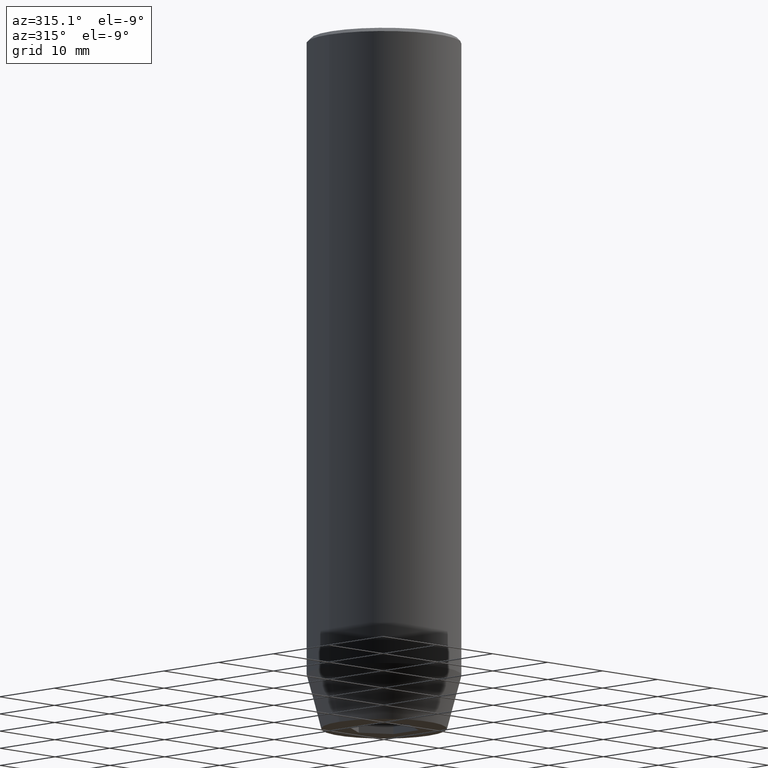
[diagram: clean part render]
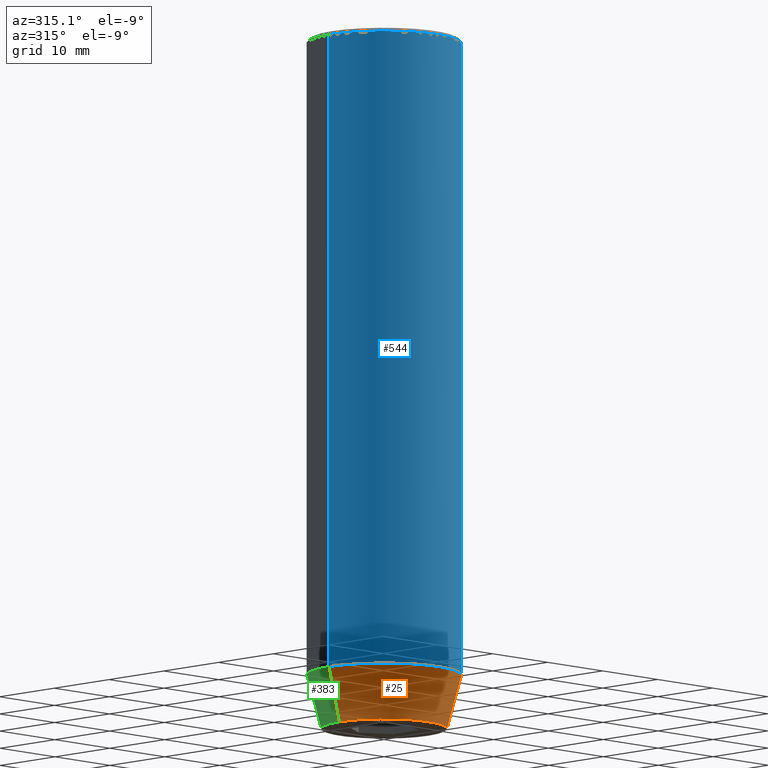
[diagram: same view with three faces highlighted in distinct colors, each labeled with its STEP entity id]
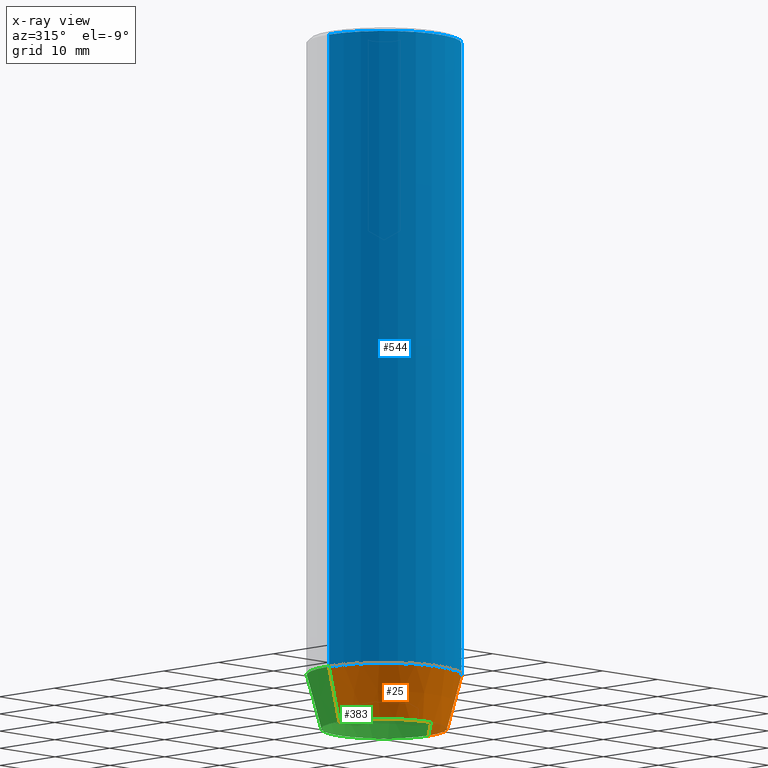
[diagram: x-ray of the same camera — body ghosted, the three highlighted faces saturated]
A machine part, auxiliary view with three faces highlighted in distinct colors.
The next image is the same camera in x-ray (body ghosted, the three faces saturated) — at least one of them is partly hidden behind the body in this view.
Their STEP definitions:

[orange] entity #25 — the highlighted conical surface has half-angle 15 deg.
#6 = LINE ( 'NONE', #62, #166 ) ;
#25 = ADVANCED_FACE ( 'NONE', ( #123 ), #472, .T. ) ;
#36 = EDGE_CURVE ( 'NONE', #230, #365, #214, .T. ) ;
#37 = VECTOR ( 'NONE', #295, 1000.000000000000000 ) ;
#40 = DIRECTION ( 'NONE',  ( -0.000000000000000000, -0.000000000000000000, 1.000000000000000000 ) ) ;
#62 = CARTESIAN_POINT ( 'NONE',  ( 10.00000000000000000, 0.000000000000000000, -82.99999999999998579 ) ) ;
#63 = ORIENTED_EDGE ( 'NONE', *, *, #36, .F. ) ;
#95 = DIRECTION ( 'NONE',  ( -0.000000000000000000, -0.000000000000000000, 1.000000000000000000 ) ) ;
#99 = DIRECTION ( 'NONE',  ( 1.000000000000000000, 0.000000000000000000, 0.000000000000000000 ) ) ;
#101 = CARTESIAN_POINT ( 'NONE',  ( 0.000000000000000000, 0.000000000000000000, -90.00000000000000000 ) ) ;
#122 = AXIS2_PLACEMENT_3D ( 'NONE', #101, #346, #268 ) ;
#123 = FACE_OUTER_BOUND ( 'NONE', #356, .T. ) ;
#166 = VECTOR ( 'NONE', #447, 1000.000000000000000 ) ;
#194 = AXIS2_PLACEMENT_3D ( 'NONE', #291, #95, #99 ) ;
#202 = CARTESIAN_POINT ( 'NONE',  ( 8.124355652982135467, 0.000000000000000000, -90.00000000000000000 ) ) ;
#214 = LINE ( 'NONE', #525, #37 ) ;
#230 = VERTEX_POINT ( 'NONE', #554 ) ;
#231 = CARTESIAN_POINT ( 'NONE',  ( -10.00000000000000000, 1.224646799147353256E-15, -82.99999999999998579 ) ) ;
#235 = AXIS2_PLACEMENT_3D ( 'NONE', #490, #40, #301 ) ;
#244 = EDGE_CURVE ( 'NONE', #230, #518, #501, .T. ) ;
#268 = DIRECTION ( 'NONE',  ( 1.000000000000000000, 0.000000000000000000, 0.000000000000000000 ) ) ;
#291 = CARTESIAN_POINT ( 'NONE',  ( 0.000000000000000000, 0.000000000000000000, -82.99999999999998579 ) ) ;
#295 = DIRECTION ( 'NONE',  ( -0.2588190451025213501, 3.169619151431772337E-17, 0.9659258262890680902 ) ) ;
#301 = DIRECTION ( 'NONE',  ( 1.000000000000000000, 0.000000000000000000, 0.000000000000000000 ) ) ;
#320 = ORIENTED_EDGE ( 'NONE', *, *, #244, .T. ) ;
#332 = ORIENTED_EDGE ( 'NONE', *, *, #337, .F. ) ;
#337 = EDGE_CURVE ( 'NONE', #365, #467, #432, .T. ) ;
#346 = DIRECTION ( 'NONE',  ( -0.000000000000000000, -0.000000000000000000, 1.000000000000000000 ) ) ;
#356 = EDGE_LOOP ( 'NONE', ( #63, #320, #442, #332 ) ) ;
#363 = CARTESIAN_POINT ( 'NONE',  ( 10.00000000000000000, 0.000000000000000000, -82.99999999999998579 ) ) ;
#365 = VERTEX_POINT ( 'NONE', #231 ) ;
#432 = CIRCLE ( 'NONE', #235, 10.00000000000000000 ) ;
#442 = ORIENTED_EDGE ( 'NONE', *, *, #556, .T. ) ;
#447 = DIRECTION ( 'NONE',  ( 0.2588190451025213501, 0.000000000000000000, 0.9659258262890680902 ) ) ;
#467 = VERTEX_POINT ( 'NONE', #363 ) ;
#472 = CONICAL_SURFACE ( 'NONE', #194, 10.00000000000000000, 0.2617993877991500740 ) ;
#490 = CARTESIAN_POINT ( 'NONE',  ( 0.000000000000000000, 0.000000000000000000, -82.99999999999998579 ) ) ;
#501 = CIRCLE ( 'NONE', #122, 8.124355652982135467 ) ;
#518 = VERTEX_POINT ( 'NONE', #202 ) ;
#525 = CARTESIAN_POINT ( 'NONE',  ( -10.00000000000000000, 1.224646799147353256E-15, -82.99999999999998579 ) ) ;
#554 = CARTESIAN_POINT ( 'NONE',  ( -8.124355652982135467, 1.109796706851640556E-15, -90.00000000000000000 ) ) ;
#556 = EDGE_CURVE ( 'NONE', #518, #467, #6, .T. ) ;

[blue] entity #544 — the highlighted cylindrical surface (partial cylindrical patch) has radius 10 mm, axis along (-0, -0, 1).
#14 = LINE ( 'NONE', #196, #105 ) ;
#15 = AXIS2_PLACEMENT_3D ( 'NONE', #302, #270, #583 ) ;
#16 = ORIENTED_EDGE ( 'NONE', *, *, #435, .T. ) ;
#24 = VECTOR ( 'NONE', #313, 1000.000000000000000 ) ;
#40 = DIRECTION ( 'NONE',  ( -0.000000000000000000, -0.000000000000000000, 1.000000000000000000 ) ) ;
#70 = DIRECTION ( 'NONE',  ( -0.000000000000000000, -0.000000000000000000, 1.000000000000000000 ) ) ;
#102 = ORIENTED_EDGE ( 'NONE', *, *, #443, .F. ) ;
#105 = VECTOR ( 'NONE', #70, 1000.000000000000000 ) ;
#111 = VERTEX_POINT ( 'NONE', #211 ) ;
#141 = VERTEX_POINT ( 'NONE', #228 ) ;
#146 = CARTESIAN_POINT ( 'NONE',  ( 10.00000000000000000, 0.000000000000000000, 0.000000000000000000 ) ) ;
#193 = ORIENTED_EDGE ( 'NONE', *, *, #337, .T. ) ;
#196 = CARTESIAN_POINT ( 'NONE',  ( -10.00000000000000000, 1.224646799147353256E-15, 0.000000000000000000 ) ) ;
#211 = CARTESIAN_POINT ( 'NONE',  ( 10.00000000000000000, 0.000000000000000000, -0.5000000000000125455 ) ) ;
#228 = CARTESIAN_POINT ( 'NONE',  ( -10.00000000000000000, 1.224646799147353256E-15, -0.5000000000000125455 ) ) ;
#231 = CARTESIAN_POINT ( 'NONE',  ( -10.00000000000000000, 1.224646799147353256E-15, -82.99999999999998579 ) ) ;
#235 = AXIS2_PLACEMENT_3D ( 'NONE', #490, #40, #301 ) ;
#270 = DIRECTION ( 'NONE',  ( -0.000000000000000000, -0.000000000000000000, 1.000000000000000000 ) ) ;
#301 = DIRECTION ( 'NONE',  ( 1.000000000000000000, 0.000000000000000000, 0.000000000000000000 ) ) ;
#302 = CARTESIAN_POINT ( 'NONE',  ( 0.000000000000000000, 0.000000000000000000, 0.000000000000000000 ) ) ;
#311 = EDGE_CURVE ( 'NONE', #111, #141, #415, .T. ) ;
#313 = DIRECTION ( 'NONE',  ( -0.000000000000000000, -0.000000000000000000, 1.000000000000000000 ) ) ;
#337 = EDGE_CURVE ( 'NONE', #365, #467, #432, .T. ) ;
#349 = FACE_OUTER_BOUND ( 'NONE', #530, .T. ) ;
#363 = CARTESIAN_POINT ( 'NONE',  ( 10.00000000000000000, 0.000000000000000000, -82.99999999999998579 ) ) ;
#365 = VERTEX_POINT ( 'NONE', #231 ) ;
#389 = DIRECTION ( 'NONE',  ( 1.000000000000000000, 0.000000000000000000, 0.000000000000000000 ) ) ;
#400 = AXIS2_PLACEMENT_3D ( 'NONE', #527, #436, #389 ) ;
#415 = CIRCLE ( 'NONE', #400, 10.00000000000000000 ) ;
#432 = CIRCLE ( 'NONE', #235, 10.00000000000000000 ) ;
#435 = EDGE_CURVE ( 'NONE', #467, #111, #548, .T. ) ;
#436 = DIRECTION ( 'NONE',  ( 0.000000000000000000, 0.000000000000000000, -1.000000000000000000 ) ) ;
#443 = EDGE_CURVE ( 'NONE', #365, #141, #14, .T. ) ;
#467 = VERTEX_POINT ( 'NONE', #363 ) ;
#470 = ORIENTED_EDGE ( 'NONE', *, *, #311, .T. ) ;
#490 = CARTESIAN_POINT ( 'NONE',  ( 0.000000000000000000, 0.000000000000000000, -82.99999999999998579 ) ) ;
#527 = CARTESIAN_POINT ( 'NONE',  ( 0.000000000000000000, 0.000000000000000000, -0.5000000000000125455 ) ) ;
#530 = EDGE_LOOP ( 'NONE', ( #102, #193, #16, #470 ) ) ;
#544 = ADVANCED_FACE ( 'NONE', ( #349 ), #546, .T. ) ;
#546 = CYLINDRICAL_SURFACE ( 'NONE', #15, 10.00000000000000000 ) ;
#548 = LINE ( 'NONE', #146, #24 ) ;
#583 = DIRECTION ( 'NONE',  ( 1.000000000000000000, 0.000000000000000000, 0.000000000000000000 ) ) ;

[green] entity #383 — the highlighted conical surface has half-angle 15 deg.
#6 = LINE ( 'NONE', #62, #166 ) ;
#27 = DIRECTION ( 'NONE',  ( -0.000000000000000000, -0.000000000000000000, 1.000000000000000000 ) ) ;
#36 = EDGE_CURVE ( 'NONE', #230, #365, #214, .T. ) ;
#37 = VECTOR ( 'NONE', #295, 1000.000000000000000 ) ;
#47 = CARTESIAN_POINT ( 'NONE',  ( 0.000000000000000000, 0.000000000000000000, -82.99999999999998579 ) ) ;
#62 = CARTESIAN_POINT ( 'NONE',  ( 10.00000000000000000, 0.000000000000000000, -82.99999999999998579 ) ) ;
#64 = EDGE_CURVE ( 'NONE', #467, #365, #537, .T. ) ;
#85 = DIRECTION ( 'NONE',  ( -0.000000000000000000, -0.000000000000000000, 1.000000000000000000 ) ) ;
#90 = CARTESIAN_POINT ( 'NONE',  ( 0.000000000000000000, 0.000000000000000000, -90.00000000000000000 ) ) ;
#94 = CIRCLE ( 'NONE', #117, 8.124355652982135467 ) ;
#117 = AXIS2_PLACEMENT_3D ( 'NONE', #90, #85, #255 ) ;
#120 = EDGE_LOOP ( 'NONE', ( #419, #201, #223, #540 ) ) ;
#128 = DIRECTION ( 'NONE',  ( 1.000000000000000000, 0.000000000000000000, 0.000000000000000000 ) ) ;
#166 = VECTOR ( 'NONE', #447, 1000.000000000000000 ) ;
#201 = ORIENTED_EDGE ( 'NONE', *, *, #36, .T. ) ;
#202 = CARTESIAN_POINT ( 'NONE',  ( 8.124355652982135467, 0.000000000000000000, -90.00000000000000000 ) ) ;
#214 = LINE ( 'NONE', #525, #37 ) ;
#223 = ORIENTED_EDGE ( 'NONE', *, *, #64, .F. ) ;
#230 = VERTEX_POINT ( 'NONE', #554 ) ;
#231 = CARTESIAN_POINT ( 'NONE',  ( -10.00000000000000000, 1.224646799147353256E-15, -82.99999999999998579 ) ) ;
#249 = CARTESIAN_POINT ( 'NONE',  ( 0.000000000000000000, 0.000000000000000000, -82.99999999999998579 ) ) ;
#252 = AXIS2_PLACEMENT_3D ( 'NONE', #249, #27, #128 ) ;
#255 = DIRECTION ( 'NONE',  ( 1.000000000000000000, 0.000000000000000000, 0.000000000000000000 ) ) ;
#295 = DIRECTION ( 'NONE',  ( -0.2588190451025213501, 3.169619151431772337E-17, 0.9659258262890680902 ) ) ;
#297 = EDGE_CURVE ( 'NONE', #518, #230, #94, .T. ) ;
#307 = DIRECTION ( 'NONE',  ( 1.000000000000000000, 0.000000000000000000, 0.000000000000000000 ) ) ;
#348 = FACE_OUTER_BOUND ( 'NONE', #120, .T. ) ;
#362 = DIRECTION ( 'NONE',  ( -0.000000000000000000, -0.000000000000000000, 1.000000000000000000 ) ) ;
#363 = CARTESIAN_POINT ( 'NONE',  ( 10.00000000000000000, 0.000000000000000000, -82.99999999999998579 ) ) ;
#365 = VERTEX_POINT ( 'NONE', #231 ) ;
#375 = CONICAL_SURFACE ( 'NONE', #453, 10.00000000000000000, 0.2617993877991500740 ) ;
#383 = ADVANCED_FACE ( 'NONE', ( #348 ), #375, .T. ) ;
#419 = ORIENTED_EDGE ( 'NONE', *, *, #297, .T. ) ;
#447 = DIRECTION ( 'NONE',  ( 0.2588190451025213501, 0.000000000000000000, 0.9659258262890680902 ) ) ;
#453 = AXIS2_PLACEMENT_3D ( 'NONE', #47, #362, #307 ) ;
#467 = VERTEX_POINT ( 'NONE', #363 ) ;
#518 = VERTEX_POINT ( 'NONE', #202 ) ;
#525 = CARTESIAN_POINT ( 'NONE',  ( -10.00000000000000000, 1.224646799147353256E-15, -82.99999999999998579 ) ) ;
#537 = CIRCLE ( 'NONE', #252, 10.00000000000000000 ) ;
#540 = ORIENTED_EDGE ( 'NONE', *, *, #556, .F. ) ;
#554 = CARTESIAN_POINT ( 'NONE',  ( -8.124355652982135467, 1.109796706851640556E-15, -90.00000000000000000 ) ) ;
#556 = EDGE_CURVE ( 'NONE', #518, #467, #6, .T. ) ;